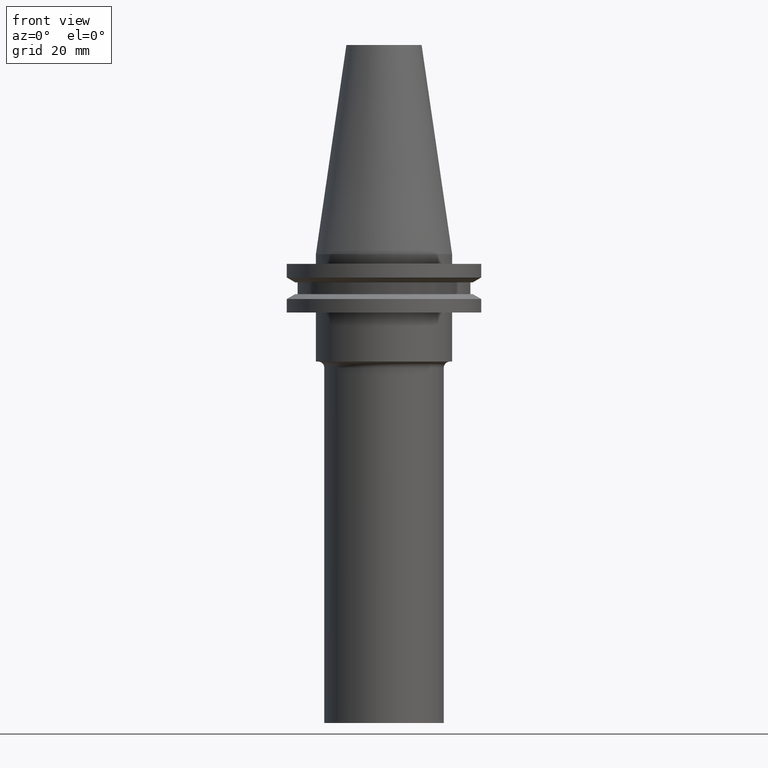
[diagram: clean part render]
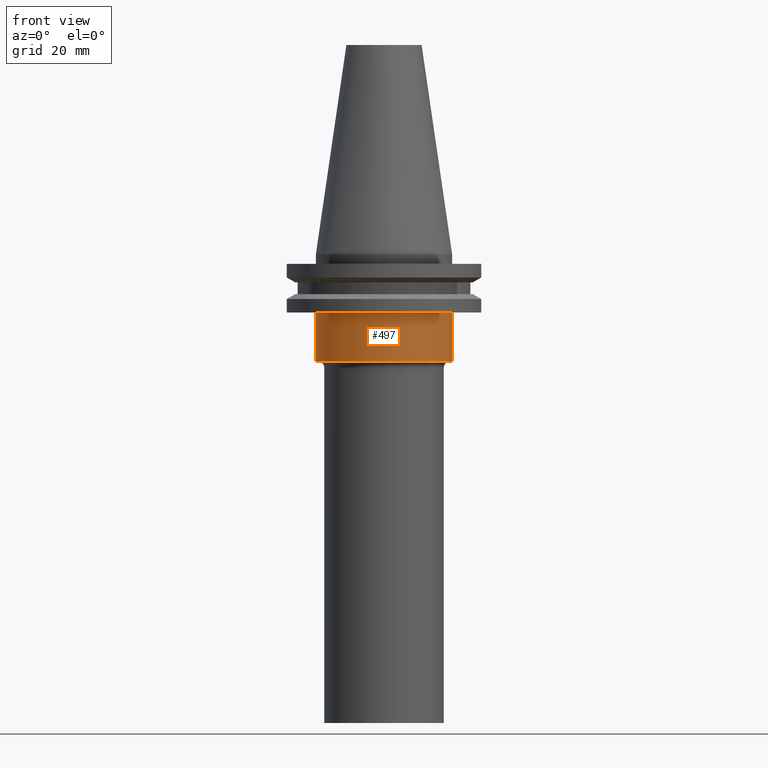
[diagram: same view with one face highlighted and labeled with its STEP entity id]
A machine part, front view. The second image highlights one B-rep face of the part: STEP entity #497.
In plain terms, the highlighted cylindrical surface (partial cylindrical patch) has radius 22.225 mm, axis along (-0, -0, 1).
Its self-contained STEP definition (entity closure, byte-faithful):
#7 = AXIS2_PLACEMENT_3D ( 'NONE', #283, #220, #148 ) ;
#16 = DIRECTION ( 'NONE',  ( -0.000000000000000000, -0.000000000000000000, 1.000000000000000000 ) ) ;
#31 = LINE ( 'NONE', #334, #58 ) ;
#44 = CARTESIAN_POINT ( 'NONE',  ( 22.22500000000000142, 0.000000000000000000, -35.04999999999999716 ) ) ;
#58 = VECTOR ( 'NONE', #267, 1000.000000000000000 ) ;
#63 = CIRCLE ( 'NONE', #93, 22.22500000000000142 ) ;
#78 = CARTESIAN_POINT ( 'NONE',  ( -22.22500000000000142, 2.721777511104992849E-15, -35.04999999999999716 ) ) ;
#83 = DIRECTION ( 'NONE',  ( 1.000000000000000000, 0.000000000000000000, 0.000000000000000000 ) ) ;
#93 = AXIS2_PLACEMENT_3D ( 'NONE', #113, #419, #230 ) ;
#110 = EDGE_CURVE ( 'NONE', #510, #678, #31, .T. ) ;
#113 = CARTESIAN_POINT ( 'NONE',  ( 0.000000000000000000, 0.000000000000000000, -35.04999999999999716 ) ) ;
#139 = ORIENTED_EDGE ( 'NONE', *, *, #163, .F. ) ;
#148 = DIRECTION ( 'NONE',  ( 1.000000000000000000, 0.000000000000000000, 0.000000000000000000 ) ) ;
#163 = EDGE_CURVE ( 'NONE', #418, #714, #472, .T. ) ;
#183 = CARTESIAN_POINT ( 'NONE',  ( 0.000000000000000000, 0.000000000000000000, -19.04999999999999716 ) ) ;
#220 = DIRECTION ( 'NONE',  ( -0.000000000000000000, -0.000000000000000000, 1.000000000000000000 ) ) ;
#224 = EDGE_CURVE ( 'NONE', #418, #510, #63, .T. ) ;
#230 = DIRECTION ( 'NONE',  ( 1.000000000000000000, 0.000000000000000000, 0.000000000000000000 ) ) ;
#267 = DIRECTION ( 'NONE',  ( -0.000000000000000000, -0.000000000000000000, 1.000000000000000000 ) ) ;
#283 = CARTESIAN_POINT ( 'NONE',  ( 0.000000000000000000, 0.000000000000000000, 68.25000000000000000 ) ) ;
#310 = CARTESIAN_POINT ( 'NONE',  ( -22.22500000000000142, 2.721777511104992849E-15, -19.04999999999999716 ) ) ;
#334 = CARTESIAN_POINT ( 'NONE',  ( 22.22500000000000142, 0.000000000000000000, 68.25000000000000000 ) ) ;
#337 = VECTOR ( 'NONE', #413, 1000.000000000000000 ) ;
#364 = EDGE_CURVE ( 'NONE', #714, #678, #447, .T. ) ;
#413 = DIRECTION ( 'NONE',  ( -0.000000000000000000, -0.000000000000000000, 1.000000000000000000 ) ) ;
#418 = VERTEX_POINT ( 'NONE', #78 ) ;
#419 = DIRECTION ( 'NONE',  ( -0.000000000000000000, -0.000000000000000000, 1.000000000000000000 ) ) ;
#447 = CIRCLE ( 'NONE', #630, 22.22500000000000142 ) ;
#458 = ORIENTED_EDGE ( 'NONE', *, *, #224, .T. ) ;
#472 = LINE ( 'NONE', #584, #337 ) ;
#478 = ORIENTED_EDGE ( 'NONE', *, *, #110, .T. ) ;
#497 = ADVANCED_FACE ( 'NONE', ( #763 ), #700, .T. ) ;
#510 = VERTEX_POINT ( 'NONE', #44 ) ;
#533 = CARTESIAN_POINT ( 'NONE',  ( 22.22500000000000142, 0.000000000000000000, -19.04999999999999716 ) ) ;
#573 = EDGE_LOOP ( 'NONE', ( #139, #458, #478, #692 ) ) ;
#584 = CARTESIAN_POINT ( 'NONE',  ( -22.22500000000000142, 2.721777511104992849E-15, 68.25000000000000000 ) ) ;
#630 = AXIS2_PLACEMENT_3D ( 'NONE', #183, #16, #83 ) ;
#678 = VERTEX_POINT ( 'NONE', #533 ) ;
#692 = ORIENTED_EDGE ( 'NONE', *, *, #364, .F. ) ;
#700 = CYLINDRICAL_SURFACE ( 'NONE', #7, 22.22500000000000142 ) ;
#714 = VERTEX_POINT ( 'NONE', #310 ) ;
#763 = FACE_OUTER_BOUND ( 'NONE', #573, .T. ) ;